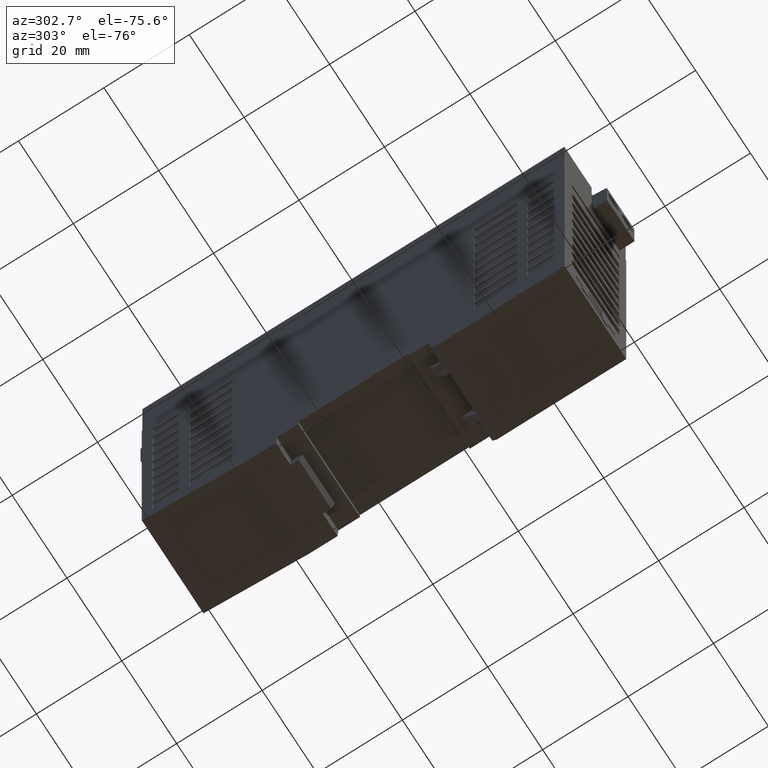
[diagram: clean part render]
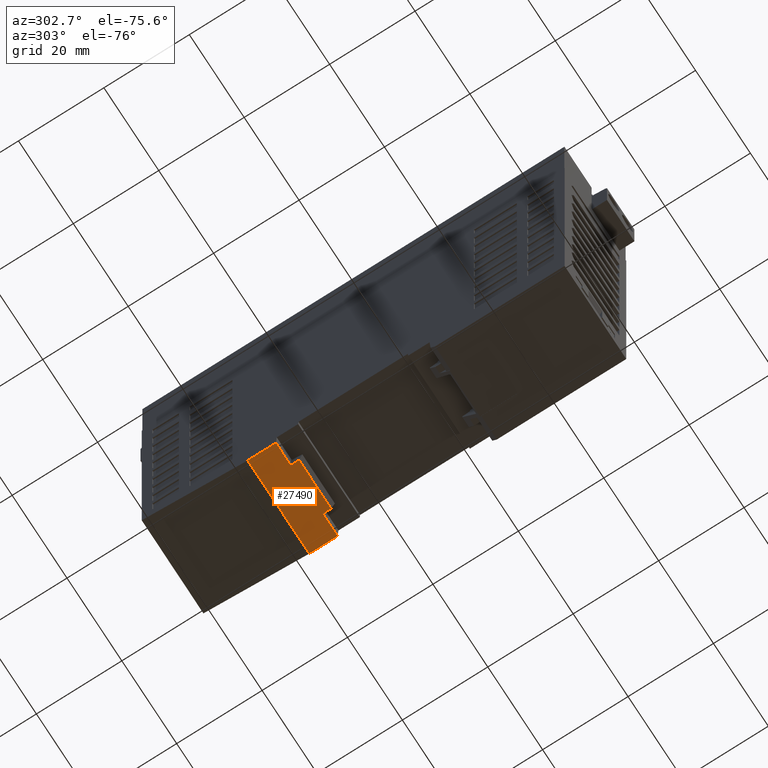
[diagram: same view with one face highlighted and labeled with its STEP entity id]
A machine part, auxiliary view. The second image highlights one B-rep face of the part: STEP entity #27490.
In plain terms, the highlighted planar face has unit normal (0, 0, 1).
Its self-contained STEP definition (entity closure, byte-faithful):
#7000=CARTESIAN_POINT('',(-11.25,-4.,24.7));
#7010=VERTEX_POINT('',#7000);
#7040=CARTESIAN_POINT('',(-11.25,-4.,18.28327647733));
#7050=DIRECTION('',(0.,0.,1.));
#7060=VECTOR('',#7050,1.);
#7070=LINE('',#7040,#7060);
#7080=CARTESIAN_POINT('',(-11.25,-4.,18.0934835639879));
#7090=VERTEX_POINT('',#7080);
#7100=EDGE_CURVE('',#7090,#7010,#7070,.T.);
#22510=CARTESIAN_POINT('',(11.25,-4.,18.0934835639879));
#22520=VERTEX_POINT('',#22510);
#22550=CARTESIAN_POINT('',(11.25,-4.,0.));
#22560=DIRECTION('',(0.,0.,-1.));
#22570=VECTOR('',#22560,1.);
#22580=LINE('',#22550,#22570);
#22590=CARTESIAN_POINT('',(11.25,-4.,24.7));
#22600=VERTEX_POINT('',#22590);
#22610=EDGE_CURVE('',#22600,#22520,#22580,.T.);
#26650=CARTESIAN_POINT('',(-5.85,-4.,18.0934835639879));
#26660=VERTEX_POINT('',#26650);
#26810=CARTESIAN_POINT('',(5.85,-4.,18.0934835639879));
#26820=VERTEX_POINT('',#26810);
#26850=CARTESIAN_POINT('',(0.,-4.,18.0934835639879));
#26860=DIRECTION('',(-1.,0.,0.));
#26870=VECTOR('',#26860,1.);
#26880=LINE('',#26850,#26870);
#26890=EDGE_CURVE('',#22520,#26820,#26880,.T.);
#26940=CARTESIAN_POINT('',(0.,-4.,18.0934835639879));
#26950=DIRECTION('',(1.,0.,0.));
#26960=VECTOR('',#26950,1.);
#26970=LINE('',#26940,#26960);
#26980=EDGE_CURVE('',#7090,#26660,#26970,.T.);
#27100=CARTESIAN_POINT('',(-11.25,-4.,24.7));
#27110=DIRECTION('',(0.,1.,0.));
#27120=DIRECTION('',(0.,0.,1.));
#27130=AXIS2_PLACEMENT_3D('',#27100,#27110,#27120);
#27140=PLANE('',#27130);
#27150=CARTESIAN_POINT('',(5.85,-4.,0.));
#27160=DIRECTION('',(0.,0.,1.));
#27170=VECTOR('',#27160,1.);
#27180=LINE('',#27150,#27170);
#27190=CARTESIAN_POINT('',(5.85,-3.99999999999999,16.1437986562244));
#27200=VERTEX_POINT('',#27190);
#27210=EDGE_CURVE('',#27200,#26820,#27180,.T.);
#27220=ORIENTED_EDGE('',*,*,#27210,.T.);
#27230=CARTESIAN_POINT('',(0.,-3.99999999999999,16.1437986562244));
#27240=DIRECTION('',(-1.,0.,0.));
#27250=VECTOR('',#27240,1.);
#27260=LINE('',#27230,#27250);
#27270=CARTESIAN_POINT('',(-5.85,-3.99999999999999,16.1437986562244));
#27280=VERTEX_POINT('',#27270);
#27290=EDGE_CURVE('',#27200,#27280,#27260,.T.);
#27300=ORIENTED_EDGE('',*,*,#27290,.F.);
#27310=CARTESIAN_POINT('',(-5.85,-4.,0.));
#27320=DIRECTION('',(0.,0.,1.));
#27330=VECTOR('',#27320,1.);
#27340=LINE('',#27310,#27330);
#27350=EDGE_CURVE('',#27280,#26660,#27340,.T.);
#27360=ORIENTED_EDGE('',*,*,#27350,.F.);
#27370=ORIENTED_EDGE('',*,*,#26980,.T.);
#27380=ORIENTED_EDGE('',*,*,#7100,.F.);
#27390=CARTESIAN_POINT('',(0.,-4.00000000000001,24.7));
#27400=DIRECTION('',(1.,0.,0.));
#27410=VECTOR('',#27400,1.);
#27420=LINE('',#27390,#27410);
#27430=EDGE_CURVE('',#7010,#22600,#27420,.T.);
#27440=ORIENTED_EDGE('',*,*,#27430,.F.);
#27450=ORIENTED_EDGE('',*,*,#22610,.F.);
#27460=ORIENTED_EDGE('',*,*,#26890,.F.);
#27470=EDGE_LOOP('',(#27460,#27450,#27440,#27380,#27370,#27360,#27300,
#27220));
#27480=FACE_OUTER_BOUND('',#27470,.T.);
#27490=ADVANCED_FACE('',(#27480),#27140,.F.);